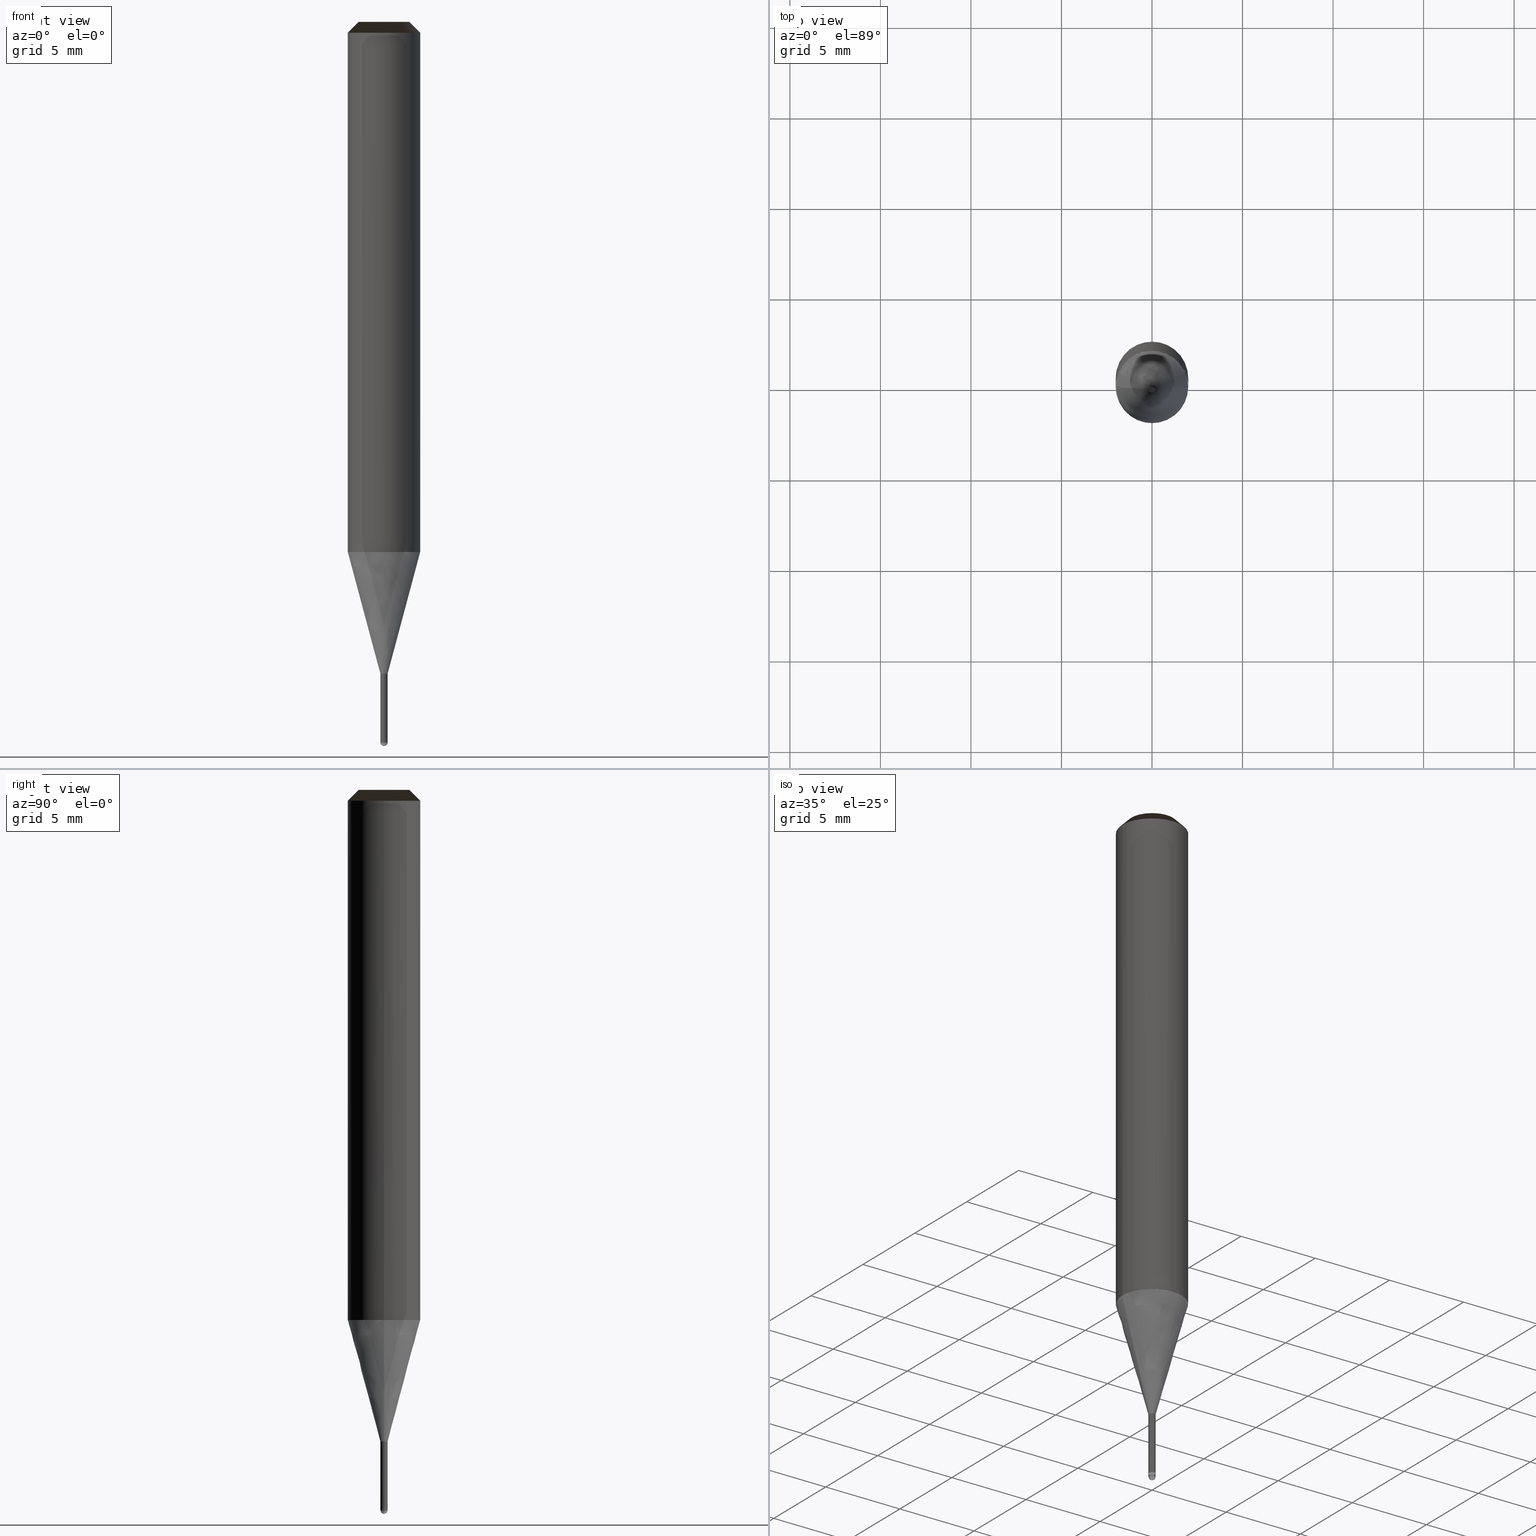
[diagram: canonical four-view strip — front | top / right | iso, engineering-drawing reading convention]
A machine part, canonical four-view strip (front | top / right | iso — engineering-drawing reading convention). The complete STEP part file that produces these views, byte-faithful:
ISO-10303-21;
HEADER;
/* Generated by ISBE GmbH (www.isbe.de) */
/* OPTION: using custom schema-name function */

FILE_DESCRIPTION(
/* description */ (''),
/* implementation_level */ '2;1');

FILE_NAME(
/*name*/ 'SHBN-2004-040-S04-STH',
/*time_stamp*/'2023-6-19T9:55:31',
/*author*/ ('ISBE GmbH'),
/*organization*/ ('ISBE GmbH'),
/*preprocessor_version*/ 'STEP IO v1.0',
/*originating_system*/ '',
/*authorisation*/ '');

FILE_SCHEMA (('AUTOMOTIVE_DESIGN'));
ENDSEC;

DATA;
#10=SHAPE_DEFINITION_REPRESENTATION(#11,#57);
#11=PRODUCT_DEFINITION_SHAPE('Document','',#13);
#12=PRODUCT_DEFINITION_CONTEXT('3D Mechanical Parts',#17,'design');
#13=PRODUCT_DEFINITION('A','First version',#14,#12);
#14=PRODUCT_DEFINITION_FORMATION_WITH_SPECIFIED_SOURCE('A','First version',#19,.MADE.);
#15=PRODUCT_RELATED_PRODUCT_CATEGORY('tool','tool',(#19));
#16=APPLICATION_PROTOCOL_DEFINITION('Draft International Standard', 'automotive_design',1999,#17);
#17=APPLICATION_CONTEXT('data for automotive mechanical design processes');
#18=PRODUCT_CONTEXT('3D Mechanical Parts',#17,'mechanical');
#19=PRODUCT('Document','Document','ISBE converted to STEP',(#18));
#20=(
LENGTH_UNIT()
NAMED_UNIT(*)
SI_UNIT(.MILLI.,.METRE.)
);
#21=(
NAMED_UNIT(*)
PLANE_ANGLE_UNIT()
SI_UNIT($,.RADIAN.)
);
#22=DIMENSIONAL_EXPONENTS(0.,0.,0.,0.,0.,0.,0.);
#23=PLANE_ANGLE_MEASURE_WITH_UNIT(PLANE_ANGLE_MEASURE(0.01745329252),#21);
#24=(
CONVERSION_BASED_UNIT('DEGREES',#23)
NAMED_UNIT(#22)
PLANE_ANGLE_UNIT()
);
#25=(
NAMED_UNIT(*)
SI_UNIT($,.STERADIAN.)
SOLID_ANGLE_UNIT()
);
#26=UNCERTAINTY_MEASURE_WITH_UNIT(LENGTH_MEASURE(0.001),#20, 'DISTANCE_ACCURACY_VALUE', 'Maximum model space distance between geometric entities at asserted connectivities');
#27=(
GEOMETRIC_REPRESENTATION_CONTEXT(3)
GLOBAL_UNCERTAINTY_ASSIGNED_CONTEXT((#26))
GLOBAL_UNIT_ASSIGNED_CONTEXT((#25,#24,#20))
REPRESENTATION_CONTEXT('ID1','3D')
);
#28=CARTESIAN_POINT('',(0.0,0.0,0.0));
#29=DIRECTION('',(1.0,0.0,0.0));
#30=DIRECTION('',(0.0,0.0,1.0));
#31=AXIS2_PLACEMENT_3D('',#28,#30,#29);
#32=CARTESIAN_POINT('',(0.0,0.0,0.0));
#33=DIRECTION('',(1.0,0.0,0.0));
#34=DIRECTION('',(0.0,0.0,1.0));
#35=AXIS2_PLACEMENT_3D('',#32,#34,#33);
#36=CARTESIAN_POINT('',(0.0,0.0,0.0));
#37=DIRECTION('',(1.0,0.0,0.0));
#38=DIRECTION('',(0.0,0.0,1.0));
#39=AXIS2_PLACEMENT_3D('',#36,#38,#37);
#40=CARTESIAN_POINT('',(0.0,0.0,0.0));
#41=DIRECTION('',(0.0,0.0,1.0));
#42=DIRECTION('',(1.0,0.0,0.0));
#43=AXIS2_PLACEMENT_3D('MCS',#40,#42,#41);
#44=CARTESIAN_POINT('',(0.0,0.0,29.28));
#45=DIRECTION('',(0.0,0.0,1.0));
#46=DIRECTION('',(1.0,0.0,0.0));
#47=AXIS2_PLACEMENT_3D('PCS',#44,#46,#45);
#48=CARTESIAN_POINT('',(0.0,0.0,-10.72));
#49=DIRECTION('',(0.0,0.0,1.0));
#50=DIRECTION('',(1.0,0.0,0.0));
#51=AXIS2_PLACEMENT_3D('CIP',#48,#50,#49);
#52=CARTESIAN_POINT('',(0.0,-0.2,-10.72));
#53=DIRECTION('',(0.0,0.0,1.0));
#54=DIRECTION('',(1.0,0.0,0.0));
#55=AXIS2_PLACEMENT_3D('CRP',#52,#54,#53);
#57=SHAPE_REPRESENTATION('Document',(#31,#35,#39,#43,#47,#51,#55),#27);
#58=DIRECTION('',(1.0,0.0,0.0));
#59=DIRECTION('',(0.0,0.0,1.0));
#60=CARTESIAN_POINT('',(-0.001999898138,-0.000020185088,-10.719967940187));
#61=CARTESIAN_POINT('',(-0.001937184154,-0.00611060247,-10.71989724324));
#62=CARTESIAN_POINT('',(-0.001858291588,-0.012678583356,-10.71958907855));
#63=CARTESIAN_POINT('',(-0.001757884212,-0.019123982412,-10.71907582259));
#64=CARTESIAN_POINT('',(-0.001623963692,-0.025523821837,-10.718358002765));
#65=CARTESIAN_POINT('',(-0.001445384409,-0.03188723763,-10.717436356683));
#66=CARTESIAN_POINT('',(-0.001211340412,-0.038212530765,-10.716311831398));
#67=CARTESIAN_POINT('',(-0.000911345944,-0.044494854652,-10.714985582436));
#68=CARTESIAN_POINT('',(-0.000535273497,-0.050728092807,-10.713458972608));
#69=CARTESIAN_POINT('',(-0.000073403757,-0.056905469984,-10.711733570607));
#70=CARTESIAN_POINT('',(0.000483521659,-0.063019788713,-10.709811149402));
#71=CARTESIAN_POINT('',(0.001144247288,-0.069063532568,-10.70769368441));
#72=CARTESIAN_POINT('',(0.001916951732,-0.075028916386,-10.705383351469));
#73=CARTESIAN_POINT('',(0.002809196959,-0.080907914367,-10.702882524603));
#74=CARTESIAN_POINT('',(0.003827879361,-0.08669227937,-10.70019377358));
#75=CARTESIAN_POINT('',(0.004979182916,-0.092373559718,-10.697319861275));
#76=CARTESIAN_POINT('',(0.006268534774,-0.097943116683,-10.694263740825));
#77=CARTESIAN_POINT('',(0.007700563585,-0.103392144361,-10.691028552601));
#78=CARTESIAN_POINT('',(0.009279060903,-0.108711692868,-10.687617620978));
#79=CARTESIAN_POINT('',(0.011006945995,-0.113892695338,-10.684034450919));
#80=CARTESIAN_POINT('',(0.0128862344,-0.118925998967,-10.680282724374));
#81=CARTESIAN_POINT('',(0.014918010555,-0.123802400146,-10.676366296494));
#82=CARTESIAN_POINT('',(0.017102404853,-0.128512683606,-10.672289191674));
#83=CARTESIAN_POINT('',(0.019438575412,-0.133047665398,-10.668055599415));
#84=CARTESIAN_POINT('',(0.021924694909,-0.137398239442,-10.66366987002));
#85=CARTESIAN_POINT('',(0.024557942723,-0.141555427309,-10.659136510121));
#86=CARTESIAN_POINT('',(0.027334502684,-0.145510430833,-10.654460178052));
#87=CARTESIAN_POINT('',(0.030249566622,-0.149254687095,-10.649645679062));
#88=CARTESIAN_POINT('',(0.033297343939,-0.152779925271,-10.644697960372));
#89=CARTESIAN_POINT('',(0.036471077322,-0.156078224784,-10.639622106098));
#90=CARTESIAN_POINT('',(0.039763064714,-0.159142074176,-10.634423332024));
#91=CARTESIAN_POINT('',(0.043164687581,-0.161964430072,-10.629106980242));
#92=CARTESIAN_POINT('',(0.04666644546,-0.164538775591,-10.623678513662));
#93=CARTESIAN_POINT('',(0.05025799672,-0.166859177548,-10.618143510401));
#94=CARTESIAN_POINT('',(0.053928205397,-0.168920341774,-10.612507658048));
#95=CARTESIAN_POINT('',(0.057665193907,-0.170717665895,-10.606776747824));
#96=CARTESIAN_POINT('',(0.061456401367,-0.172247288908,-10.600956668624));
#97=CARTESIAN_POINT('',(0.065288647189,-0.173506136924,-10.595053400976));
#98=CARTESIAN_POINT('',(0.069148199571,-0.174491964467,-10.589073010884));
#99=CARTESIAN_POINT('',(0.073020848405,-0.175203390765,-10.583021643605));
#100=CARTESIAN_POINT('',(0.076891982118,-0.175639930494,-10.576905517326));
#101=CARTESIAN_POINT('',(0.080746667854,-0.175802018512,-10.570730916782));
#102=CARTESIAN_POINT('',(0.084569734412,-0.17569102817,-10.564504186791));
#103=CARTESIAN_POINT('',(0.088345857261,-0.175309282845,-10.55823172574));
#104=CARTESIAN_POINT('',(0.092059644978,-0.174660060422,-10.551919979007));
#105=CARTESIAN_POINT('',(0.095695726368,-0.173747590532,-10.545575432337));
#106=CARTESIAN_POINT('',(0.099238837562,-0.172577044416,-10.539204605182));
#107=CARTESIAN_POINT('',(0.102673908347,-0.171154517385,-10.532814043996));
#108=CARTESIAN_POINT('',(0.105986147006,-0.16948700392,-10.526410315514));
#109=CARTESIAN_POINT('',(0.109161122935,-0.167582365539,-10.52));
#110=CARTESIAN_POINT('',(0.139198380059,-0.143609926499,-10.453333333333));
#111=CARTESIAN_POINT('',(0.164096034017,-0.114334997354,-10.386666666667));
#112=CARTESIAN_POINT('',(0.182934792063,-0.080838492396,-10.32));
#113=CARTESIAN_POINT('',(0.001999898138,0.000020185088,-10.719967940187));
#114=CARTESIAN_POINT('',(0.001937184154,0.00611060247,-10.71989724324));
#115=CARTESIAN_POINT('',(0.001858291588,0.012678583356,-10.71958907855));
#116=CARTESIAN_POINT('',(0.001757884212,0.019123982412,-10.71907582259));
#117=CARTESIAN_POINT('',(0.001623963692,0.025523821837,-10.718358002765));
#118=CARTESIAN_POINT('',(0.001445384409,0.03188723763,-10.717436356683));
#119=CARTESIAN_POINT('',(0.001211340412,0.038212530765,-10.716311831398));
#120=CARTESIAN_POINT('',(0.000911345944,0.044494854652,-10.714985582436));
#121=CARTESIAN_POINT('',(0.000535273497,0.050728092807,-10.713458972608));
#122=CARTESIAN_POINT('',(0.000073403757,0.056905469984,-10.711733570607));
#123=CARTESIAN_POINT('',(-0.000483521659,0.063019788713,-10.709811149402));
#124=CARTESIAN_POINT('',(-0.001144247288,0.069063532568,-10.70769368441));
#125=CARTESIAN_POINT('',(-0.001916951732,0.075028916386,-10.705383351469));
#126=CARTESIAN_POINT('',(-0.002809196959,0.080907914367,-10.702882524603));
#127=CARTESIAN_POINT('',(-0.003827879361,0.08669227937,-10.70019377358));
#128=CARTESIAN_POINT('',(-0.004979182916,0.092373559718,-10.697319861275));
#129=CARTESIAN_POINT('',(-0.006268534774,0.097943116683,-10.694263740825));
#130=CARTESIAN_POINT('',(-0.007700563585,0.103392144361,-10.691028552601));
#131=CARTESIAN_POINT('',(-0.009279060903,0.108711692868,-10.687617620978));
#132=CARTESIAN_POINT('',(-0.011006945995,0.113892695338,-10.684034450919));
#133=CARTESIAN_POINT('',(-0.0128862344,0.118925998967,-10.680282724374));
#134=CARTESIAN_POINT('',(-0.014918010555,0.123802400146,-10.676366296494));
#135=CARTESIAN_POINT('',(-0.017102404853,0.128512683606,-10.672289191674));
#136=CARTESIAN_POINT('',(-0.019438575412,0.133047665398,-10.668055599415));
#137=CARTESIAN_POINT('',(-0.021924694909,0.137398239442,-10.66366987002));
#138=CARTESIAN_POINT('',(-0.024557942723,0.141555427309,-10.659136510121));
#139=CARTESIAN_POINT('',(-0.027334502684,0.145510430833,-10.654460178052));
#140=CARTESIAN_POINT('',(-0.030249566622,0.149254687095,-10.649645679062));
#141=CARTESIAN_POINT('',(-0.033297343939,0.152779925271,-10.644697960372));
#142=CARTESIAN_POINT('',(-0.036471077322,0.156078224784,-10.639622106098));
#143=CARTESIAN_POINT('',(-0.039763064714,0.159142074176,-10.634423332024));
#144=CARTESIAN_POINT('',(-0.043164687581,0.161964430072,-10.629106980242));
#145=CARTESIAN_POINT('',(-0.04666644546,0.164538775591,-10.623678513662));
#146=CARTESIAN_POINT('',(-0.05025799672,0.166859177548,-10.618143510401));
#147=CARTESIAN_POINT('',(-0.053928205397,0.168920341774,-10.612507658048));
#148=CARTESIAN_POINT('',(-0.057665193907,0.170717665895,-10.606776747824));
#149=CARTESIAN_POINT('',(-0.061456401367,0.172247288908,-10.600956668624));
#150=CARTESIAN_POINT('',(-0.065288647189,0.173506136924,-10.595053400976));
#151=CARTESIAN_POINT('',(-0.069148199571,0.174491964467,-10.589073010884));
#152=CARTESIAN_POINT('',(-0.073020848405,0.175203390765,-10.583021643605));
#153=CARTESIAN_POINT('',(-0.076891982118,0.175639930494,-10.576905517326));
#154=CARTESIAN_POINT('',(-0.080746667854,0.175802018512,-10.570730916782));
#155=CARTESIAN_POINT('',(-0.084569734412,0.17569102817,-10.564504186791));
#156=CARTESIAN_POINT('',(-0.088345857261,0.175309282845,-10.55823172574));
#157=CARTESIAN_POINT('',(-0.092059644978,0.174660060422,-10.551919979007));
#158=CARTESIAN_POINT('',(-0.095695726368,0.173747590532,-10.545575432337));
#159=CARTESIAN_POINT('',(-0.099238837562,0.172577044416,-10.539204605182));
#160=CARTESIAN_POINT('',(-0.102673908347,0.171154517385,-10.532814043996));
#161=CARTESIAN_POINT('',(-0.105986147006,0.16948700392,-10.526410315514));
#162=CARTESIAN_POINT('',(-0.109161122935,0.167582365539,-10.52));
#163=CARTESIAN_POINT('',(-0.139198380059,0.143609926499,-10.453333333333));
#164=CARTESIAN_POINT('',(-0.164096034017,0.114334997354,-10.386666666667));
#165=CARTESIAN_POINT('',(-0.182934792063,0.080838492396,-10.32));
#166=CARTESIAN_POINT('',(0.0,0.0,-10.72));
#167=CARTESIAN_POINT('',(0.2,0.0,-10.72));
#168=CARTESIAN_POINT('',(0.2,0.2,-10.72));
#169=CARTESIAN_POINT('',(0.0,0.2,-10.72));
#170=CARTESIAN_POINT('',(-0.2,0.2,-10.72));
#171=CARTESIAN_POINT('',(-0.2,0.0,-10.72));
#172=CARTESIAN_POINT('',(0.2,0.0,-10.52));
#173=CARTESIAN_POINT('',(0.2,0.2,-10.52));
#174=CARTESIAN_POINT('',(0.0,0.2,-10.52));
#175=CARTESIAN_POINT('',(-0.2,0.2,-10.52));
#176=CARTESIAN_POINT('',(-0.2,0.0,-10.52));
#177=CARTESIAN_POINT('',(0.2,0.0,-10.32));
#178=CARTESIAN_POINT('',(0.2,0.2,-10.32));
#179=CARTESIAN_POINT('',(0.0,0.2,-10.32));
#180=CARTESIAN_POINT('',(-0.2,0.2,-10.32));
#181=CARTESIAN_POINT('',(-0.2,0.0,-10.32));
#182=CARTESIAN_POINT('',(0.0,0.0,-10.32));
#183=CARTESIAN_POINT('',(-0.2,-0.2,-10.72));
#184=CARTESIAN_POINT('',(0.0,-0.2,-10.72));
#185=CARTESIAN_POINT('',(0.2,-0.2,-10.72));
#186=CARTESIAN_POINT('',(-0.2,-0.2,-10.52));
#187=CARTESIAN_POINT('',(0.0,-0.2,-10.52));
#188=CARTESIAN_POINT('',(0.2,-0.2,-10.52));
#189=CARTESIAN_POINT('',(-0.2,-0.2,-10.32));
#190=CARTESIAN_POINT('',(0.0,-0.2,-10.32));
#191=CARTESIAN_POINT('',(0.2,-0.2,-10.32));
#192=CARTESIAN_POINT('',(0.2,0.0,-6.717691453624));
#193=CARTESIAN_POINT('',(0.2,0.2,-6.717691453624));
#194=CARTESIAN_POINT('',(0.0,0.2,-6.717691453624));
#195=CARTESIAN_POINT('',(-0.2,0.2,-6.717691453624));
#196=CARTESIAN_POINT('',(-0.2,0.0,-6.717691453624));
#197=CARTESIAN_POINT('',(2.0,0.0,0.0));
#198=CARTESIAN_POINT('',(2.0,2.0,0.0));
#199=CARTESIAN_POINT('',(0.0,2.0,0.0));
#200=CARTESIAN_POINT('',(-2.0,2.0,0.0));
#201=CARTESIAN_POINT('',(-2.0,0.0,0.0));
#202=CARTESIAN_POINT('',(2.0,0.0,28.68));
#203=CARTESIAN_POINT('',(2.0,2.0,28.68));
#204=CARTESIAN_POINT('',(0.0,2.0,28.68));
#205=CARTESIAN_POINT('',(-2.0,2.0,28.68));
#206=CARTESIAN_POINT('',(-2.0,0.0,28.68));
#207=CARTESIAN_POINT('',(1.4,0.0,29.28));
#208=CARTESIAN_POINT('',(1.4,1.4,29.28));
#209=CARTESIAN_POINT('',(0.0,1.4,29.28));
#210=CARTESIAN_POINT('',(-1.4,1.4,29.28));
#211=CARTESIAN_POINT('',(-1.4,0.0,29.28));
#212=CARTESIAN_POINT('',(0.0,0.0,29.28));
#213=CARTESIAN_POINT('',(-0.2,-0.2,-6.717691453624));
#214=CARTESIAN_POINT('',(0.0,-0.2,-6.717691453624));
#215=CARTESIAN_POINT('',(0.2,-0.2,-6.717691453624));
#216=CARTESIAN_POINT('',(-2.0,-2.0,0.0));
#217=CARTESIAN_POINT('',(0.0,-2.0,0.0));
#218=CARTESIAN_POINT('',(2.0,-2.0,0.0));
#219=CARTESIAN_POINT('',(-2.0,-2.0,28.68));
#220=CARTESIAN_POINT('',(0.0,-2.0,28.68));
#221=CARTESIAN_POINT('',(2.0,-2.0,28.68));
#222=CARTESIAN_POINT('',(-1.4,-1.4,29.28));
#223=CARTESIAN_POINT('',(0.0,-1.4,29.28));
#224=CARTESIAN_POINT('',(1.4,-1.4,29.28));
#225=(
BOUNDED_CURVE()
B_SPLINE_CURVE(1,(#60,#61,#62,#63,#64,#65,#66,#67,#68,#69,#70,#71,#72,#73,#74,#75,#76,#77,#78,#79,#80,#81,#82,#83,#84,#85,#86,#87,#88,#89,#90,#91,#92,#93,#94,#95,#96,#97,#98,#99,#100,#101,#102,#103,#104,#105,#106,#107,#108,#109,#110,#111,#112),.UNSPECIFIED.,.F.,.F.)
B_SPLINE_CURVE_WITH_KNOTS((2,1,1,1,1,1,1,1,1,1,1,1,1,1,1,1,1,1,1,1,1,1,1,1,1,1,1,1,1,1,1,1,1,1,1,1,1,1,1,1,1,1,1,1,1,1,1,1,1,1,1,1,2),
(0.0,0.010797937717,0.022454812458,0.033918287012,0.045337053527,0.056739741697,0.068136128556,0.079530841415,0.090926753835,0.102326126341,0.113731071449,0.125143769553,0.136566576792,0.148002078813,0.159453113446,0.170922773028,0.182414391909,0.193931522299,0.205477900529,0.217057405334,0.228674009522,0.240331726387,0.252034552176,0.263786405947,0.275591068177,0.287452119419,0.299372880312,0.311356354129,0.323405172973,0.335521548593,0.347707228654,0.359963459135,0.37229095337,0.384689868109,0.397159786789,0.409699710099,0.422308053785,0.434982653531,0.44772077666,0.460519140328,0.473373935811,0.486280858462,0.499235142853,0.512231602616,0.52526467446,0.538328465868,0.551416805924,0.56452329877,0.577641379158,0.590764369582,0.727176246388,0.863588123194,1.0),.UNSPECIFIED.)
CURVE()
GEOMETRIC_REPRESENTATION_ITEM()
RATIONAL_B_SPLINE_CURVE((1.0,1.0,1.0,1.0,1.0,1.0,1.0,1.0,1.0,1.0,1.0,1.0,1.0,1.0,1.0,1.0,1.0,1.0,1.0,1.0,1.0,1.0,1.0,1.0,1.0,1.0,1.0,1.0,1.0,1.0,1.0,1.0,1.0,1.0,1.0,1.0,1.0,1.0,1.0,1.0,1.0,1.0,1.0,1.0,1.0,1.0,1.0,1.0,1.0,1.0,1.0,1.0,1.0))
REPRESENTATION_ITEM('')
);
#226=(
BOUNDED_CURVE()
B_SPLINE_CURVE(1,(#113,#114,#115,#116,#117,#118,#119,#120,#121,#122,#123,#124,#125,#126,#127,#128,#129,#130,#131,#132,#133,#134,#135,#136,#137,#138,#139,#140,#141,#142,#143,#144,#145,#146,#147,#148,#149,#150,#151,#152,#153,#154,#155,#156,#157,#158,#159,#160,#161,#162,#163,#164,#165),.UNSPECIFIED.,.F.,.F.)
B_SPLINE_CURVE_WITH_KNOTS((2,1,1,1,1,1,1,1,1,1,1,1,1,1,1,1,1,1,1,1,1,1,1,1,1,1,1,1,1,1,1,1,1,1,1,1,1,1,1,1,1,1,1,1,1,1,1,1,1,1,1,1,2),
(0.0,0.010797937717,0.022454812458,0.033918287012,0.045337053527,0.056739741697,0.068136128556,0.079530841415,0.090926753835,0.102326126341,0.113731071449,0.125143769553,0.136566576792,0.148002078813,0.159453113446,0.170922773028,0.182414391909,0.193931522299,0.205477900529,0.217057405334,0.228674009522,0.240331726387,0.252034552176,0.263786405947,0.275591068177,0.287452119419,0.299372880312,0.311356354129,0.323405172973,0.335521548593,0.347707228654,0.359963459135,0.37229095337,0.384689868109,0.397159786789,0.409699710099,0.422308053785,0.434982653531,0.44772077666,0.460519140328,0.473373935811,0.486280858462,0.499235142853,0.512231602616,0.52526467446,0.538328465868,0.551416805924,0.56452329877,0.577641379158,0.590764369582,0.727176246388,0.863588123194,1.0),.UNSPECIFIED.)
CURVE()
GEOMETRIC_REPRESENTATION_ITEM()
RATIONAL_B_SPLINE_CURVE((1.0,1.0,1.0,1.0,1.0,1.0,1.0,1.0,1.0,1.0,1.0,1.0,1.0,1.0,1.0,1.0,1.0,1.0,1.0,1.0,1.0,1.0,1.0,1.0,1.0,1.0,1.0,1.0,1.0,1.0,1.0,1.0,1.0,1.0,1.0,1.0,1.0,1.0,1.0,1.0,1.0,1.0,1.0,1.0,1.0,1.0,1.0,1.0,1.0,1.0,1.0,1.0,1.0))
REPRESENTATION_ITEM('')
);
#227=SHAPE_REPRESENTATION_RELATIONSHIP('','',#57,#228);
#228=GEOMETRICALLY_BOUNDED_WIREFRAME_SHAPE_REPRESENTATION('Curves',(#229,#31),#27);
#229=GEOMETRIC_CURVE_SET('CurveSet',(#225,#226));
#230=(
BOUNDED_SURFACE()
B_SPLINE_SURFACE(2,2,(
(#166,#166,#166,#166,#166),
(#167,#168,#169,#170,#171),
(#172,#173,#174,#175,#176)
), .UNSPECIFIED.,.F.,.F.,.F.)
B_SPLINE_SURFACE_WITH_KNOTS((3,3),(3,2,3),(
0.0,1.0),(
0.0,0.5,1.0), .UNSPECIFIED.)
GEOMETRIC_REPRESENTATION_ITEM()
RATIONAL_B_SPLINE_SURFACE(((1.0,0.707106781187,1.0,0.707106781187,1.0),
(0.707106781187,0.5,0.707106781187,0.5,0.707106781187),
(1.0,0.707106781187,1.0,0.707106781187,1.0)
))
REPRESENTATION_ITEM('')
SURFACE()
);
#231=(
BOUNDED_CURVE()
B_SPLINE_CURVE(2,(#172,#173,#174,#175,#176),.UNSPECIFIED.,.F.,.F.)
B_SPLINE_CURVE_WITH_KNOTS((3,2,3),
(0.0,0.5,1.0),.UNSPECIFIED.)
CURVE()
GEOMETRIC_REPRESENTATION_ITEM()
RATIONAL_B_SPLINE_CURVE((1.0,0.707106781187,1.0,0.707106781187,1.0))
REPRESENTATION_ITEM('')
);
#232=(
BOUNDED_CURVE()
B_SPLINE_CURVE(2,(#176,#171,#166),.UNSPECIFIED.,.F.,.F.)
B_SPLINE_CURVE_WITH_KNOTS((3,3),
(0.0,1.0),.UNSPECIFIED.)
CURVE()
GEOMETRIC_REPRESENTATION_ITEM()
RATIONAL_B_SPLINE_CURVE((1.0,0.707106781187,1.0))
REPRESENTATION_ITEM('')
);
#233=(
BOUNDED_CURVE()
B_SPLINE_CURVE(2,(#166,#167,#172),.UNSPECIFIED.,.F.,.F.)
B_SPLINE_CURVE_WITH_KNOTS((3,3),
(0.0,1.0),.UNSPECIFIED.)
CURVE()
GEOMETRIC_REPRESENTATION_ITEM()
RATIONAL_B_SPLINE_CURVE((1.0,0.707106781187,1.0))
REPRESENTATION_ITEM('')
);
#234=VERTEX_POINT('',#166);
#235=VERTEX_POINT('',#172);
#236=VERTEX_POINT('',#176);
#237=EDGE_CURVE('',#235,#236,#231,.T.);
#238=EDGE_CURVE('',#236,#234,#232,.T.);
#239=EDGE_CURVE('',#234,#235,#233,.T.);
#240=ORIENTED_EDGE('',*,*,#237,.T.);
#241=ORIENTED_EDGE('',*,*,#238,.T.);
#242=ORIENTED_EDGE('',*,*,#239,.T.);
#243=EDGE_LOOP('',(#240,#241,#242));
#244=FACE_OUTER_BOUND('',#243,.T.);
#245=ADVANCED_FACE('',(#244),#230,.T.);
#246=(
BOUNDED_SURFACE()
B_SPLINE_SURFACE(1,2,(
(#172,#173,#174,#175,#176),
(#177,#178,#179,#180,#181)
), .UNSPECIFIED.,.F.,.F.,.F.)
B_SPLINE_SURFACE_WITH_KNOTS((2,2),(3,2,3),(
0.0,1.0),(
0.0,0.5,1.0), .UNSPECIFIED.)
GEOMETRIC_REPRESENTATION_ITEM()
RATIONAL_B_SPLINE_SURFACE(((1.0,0.707106781187,1.0,0.707106781187,1.0),
(1.0,0.707106781187,1.0,0.707106781187,1.0)
))
REPRESENTATION_ITEM('')
SURFACE()
);
#247=(
BOUNDED_CURVE()
B_SPLINE_CURVE(2,(#177,#178,#179,#180,#181),.UNSPECIFIED.,.F.,.F.)
B_SPLINE_CURVE_WITH_KNOTS((3,2,3),
(0.0,0.5,1.0),.UNSPECIFIED.)
CURVE()
GEOMETRIC_REPRESENTATION_ITEM()
RATIONAL_B_SPLINE_CURVE((1.0,0.707106781187,1.0,0.707106781187,1.0))
REPRESENTATION_ITEM('')
);
#248=(
BOUNDED_CURVE()
B_SPLINE_CURVE(1,(#181,#176),.UNSPECIFIED.,.F.,.F.)
B_SPLINE_CURVE_WITH_KNOTS((2,2),
(0.0,1.0),.UNSPECIFIED.)
CURVE()
GEOMETRIC_REPRESENTATION_ITEM()
RATIONAL_B_SPLINE_CURVE((1.0,1.0))
REPRESENTATION_ITEM('')
);
#249=(
BOUNDED_CURVE()
B_SPLINE_CURVE(2,(#176,#175,#174,#173,#172),.UNSPECIFIED.,.F.,.F.)
B_SPLINE_CURVE_WITH_KNOTS((3,2,3),
(0.0,0.5,1.0),.UNSPECIFIED.)
CURVE()
GEOMETRIC_REPRESENTATION_ITEM()
RATIONAL_B_SPLINE_CURVE((1.0,0.707106781187,1.0,0.707106781187,1.0))
REPRESENTATION_ITEM('')
);
#250=(
BOUNDED_CURVE()
B_SPLINE_CURVE(1,(#172,#177),.UNSPECIFIED.,.F.,.F.)
B_SPLINE_CURVE_WITH_KNOTS((2,2),
(0.0,1.0),.UNSPECIFIED.)
CURVE()
GEOMETRIC_REPRESENTATION_ITEM()
RATIONAL_B_SPLINE_CURVE((1.0,1.0))
REPRESENTATION_ITEM('')
);
#251=VERTEX_POINT('',#172);
#252=VERTEX_POINT('',#176);
#253=VERTEX_POINT('',#177);
#254=VERTEX_POINT('',#181);
#255=EDGE_CURVE('',#253,#254,#247,.T.);
#256=EDGE_CURVE('',#254,#252,#248,.T.);
#257=EDGE_CURVE('',#252,#251,#249,.T.);
#258=EDGE_CURVE('',#251,#253,#250,.T.);
#259=ORIENTED_EDGE('',*,*,#255,.T.);
#260=ORIENTED_EDGE('',*,*,#256,.T.);
#261=ORIENTED_EDGE('',*,*,#257,.T.);
#262=ORIENTED_EDGE('',*,*,#258,.T.);
#263=EDGE_LOOP('',(#259,#260,#261,#262));
#264=FACE_OUTER_BOUND('',#263,.T.);
#265=ADVANCED_FACE('',(#264),#246,.T.);
#266=(
BOUNDED_SURFACE()
B_SPLINE_SURFACE(1,2,(
(#177,#178,#179,#180,#181),
(#182,#182,#182,#182,#182)
), .UNSPECIFIED.,.F.,.F.,.F.)
B_SPLINE_SURFACE_WITH_KNOTS((2,2),(3,2,3),(
0.0,1.0),(
0.0,0.5,1.0), .UNSPECIFIED.)
GEOMETRIC_REPRESENTATION_ITEM()
RATIONAL_B_SPLINE_SURFACE(((1.0,0.707106781187,1.0,0.707106781187,1.0),
(1.0,0.707106781187,1.0,0.707106781187,1.0)
))
REPRESENTATION_ITEM('')
SURFACE()
);
#267=(
BOUNDED_CURVE()
B_SPLINE_CURVE(1,(#182,#177),.UNSPECIFIED.,.F.,.F.)
B_SPLINE_CURVE_WITH_KNOTS((2,2),
(0.0,1.0),.UNSPECIFIED.)
CURVE()
GEOMETRIC_REPRESENTATION_ITEM()
RATIONAL_B_SPLINE_CURVE((1.0,1.0))
REPRESENTATION_ITEM('')
);
#268=(
BOUNDED_CURVE()
B_SPLINE_CURVE(2,(#177,#178,#179,#180,#181),.UNSPECIFIED.,.F.,.F.)
B_SPLINE_CURVE_WITH_KNOTS((3,2,3),
(0.0,0.5,1.0),.UNSPECIFIED.)
CURVE()
GEOMETRIC_REPRESENTATION_ITEM()
RATIONAL_B_SPLINE_CURVE((1.0,0.707106781187,1.0,0.707106781187,1.0))
REPRESENTATION_ITEM('')
);
#269=(
BOUNDED_CURVE()
B_SPLINE_CURVE(1,(#181,#182),.UNSPECIFIED.,.F.,.F.)
B_SPLINE_CURVE_WITH_KNOTS((2,2),
(0.0,1.0),.UNSPECIFIED.)
CURVE()
GEOMETRIC_REPRESENTATION_ITEM()
RATIONAL_B_SPLINE_CURVE((1.0,1.0))
REPRESENTATION_ITEM('')
);
#270=VERTEX_POINT('',#177);
#271=VERTEX_POINT('',#181);
#272=VERTEX_POINT('',#182);
#273=EDGE_CURVE('',#272,#270,#267,.T.);
#274=EDGE_CURVE('',#270,#271,#268,.T.);
#275=EDGE_CURVE('',#271,#272,#269,.T.);
#276=ORIENTED_EDGE('',*,*,#273,.T.);
#277=ORIENTED_EDGE('',*,*,#274,.T.);
#278=ORIENTED_EDGE('',*,*,#275,.T.);
#279=EDGE_LOOP('',(#276,#277,#278));
#280=FACE_OUTER_BOUND('',#279,.T.);
#281=ADVANCED_FACE('',(#280),#266,.T.);
#282=(
BOUNDED_SURFACE()
B_SPLINE_SURFACE(2,2,(
(#166,#166,#166,#166,#166),
(#171,#183,#184,#185,#167),
(#176,#186,#187,#188,#172)
), .UNSPECIFIED.,.F.,.F.,.F.)
B_SPLINE_SURFACE_WITH_KNOTS((3,3),(3,2,3),(
0.0,1.0),(
0.0,0.5,1.0), .UNSPECIFIED.)
GEOMETRIC_REPRESENTATION_ITEM()
RATIONAL_B_SPLINE_SURFACE(((1.0,0.707106781187,1.0,0.707106781187,1.0),
(0.707106781187,0.5,0.707106781187,0.5,0.707106781187),
(1.0,0.707106781187,1.0,0.707106781187,1.0)
))
REPRESENTATION_ITEM('')
SURFACE()
);
#283=(
BOUNDED_CURVE()
B_SPLINE_CURVE(2,(#176,#171,#166),.UNSPECIFIED.,.F.,.F.)
B_SPLINE_CURVE_WITH_KNOTS((3,3),
(0.0,1.0),.UNSPECIFIED.)
CURVE()
GEOMETRIC_REPRESENTATION_ITEM()
RATIONAL_B_SPLINE_CURVE((1.0,0.707106781187,1.0))
REPRESENTATION_ITEM('')
);
#284=(
BOUNDED_CURVE()
B_SPLINE_CURVE(2,(#166,#167,#172),.UNSPECIFIED.,.F.,.F.)
B_SPLINE_CURVE_WITH_KNOTS((3,3),
(0.0,1.0),.UNSPECIFIED.)
CURVE()
GEOMETRIC_REPRESENTATION_ITEM()
RATIONAL_B_SPLINE_CURVE((1.0,0.707106781187,1.0))
REPRESENTATION_ITEM('')
);
#285=(
BOUNDED_CURVE()
B_SPLINE_CURVE(2,(#172,#188,#187,#186,#176),.UNSPECIFIED.,.F.,.F.)
B_SPLINE_CURVE_WITH_KNOTS((3,2,3),
(0.0,0.5,1.0),.UNSPECIFIED.)
CURVE()
GEOMETRIC_REPRESENTATION_ITEM()
RATIONAL_B_SPLINE_CURVE((1.0,0.707106781187,1.0,0.707106781187,1.0))
REPRESENTATION_ITEM('')
);
#286=VERTEX_POINT('',#166);
#287=VERTEX_POINT('',#172);
#288=VERTEX_POINT('',#176);
#289=EDGE_CURVE('',#288,#286,#283,.T.);
#290=EDGE_CURVE('',#286,#287,#284,.T.);
#291=EDGE_CURVE('',#287,#288,#285,.T.);
#292=ORIENTED_EDGE('',*,*,#289,.T.);
#293=ORIENTED_EDGE('',*,*,#290,.T.);
#294=ORIENTED_EDGE('',*,*,#291,.T.);
#295=EDGE_LOOP('',(#292,#293,#294));
#296=FACE_OUTER_BOUND('',#295,.T.);
#297=ADVANCED_FACE('',(#296),#282,.T.);
#298=(
BOUNDED_SURFACE()
B_SPLINE_SURFACE(1,2,(
(#176,#186,#187,#188,#172),
(#181,#189,#190,#191,#177)
), .UNSPECIFIED.,.F.,.F.,.F.)
B_SPLINE_SURFACE_WITH_KNOTS((2,2),(3,2,3),(
0.0,1.0),(
0.0,0.5,1.0), .UNSPECIFIED.)
GEOMETRIC_REPRESENTATION_ITEM()
RATIONAL_B_SPLINE_SURFACE(((1.0,0.707106781187,1.0,0.707106781187,1.0),
(1.0,0.707106781187,1.0,0.707106781187,1.0)
))
REPRESENTATION_ITEM('')
SURFACE()
);
#299=(
BOUNDED_CURVE()
B_SPLINE_CURVE(1,(#181,#176),.UNSPECIFIED.,.F.,.F.)
B_SPLINE_CURVE_WITH_KNOTS((2,2),
(0.0,1.0),.UNSPECIFIED.)
CURVE()
GEOMETRIC_REPRESENTATION_ITEM()
RATIONAL_B_SPLINE_CURVE((1.0,1.0))
REPRESENTATION_ITEM('')
);
#300=(
BOUNDED_CURVE()
B_SPLINE_CURVE(2,(#176,#186,#187,#188,#172),.UNSPECIFIED.,.F.,.F.)
B_SPLINE_CURVE_WITH_KNOTS((3,2,3),
(0.0,0.5,1.0),.UNSPECIFIED.)
CURVE()
GEOMETRIC_REPRESENTATION_ITEM()
RATIONAL_B_SPLINE_CURVE((1.0,0.707106781187,1.0,0.707106781187,1.0))
REPRESENTATION_ITEM('')
);
#301=(
BOUNDED_CURVE()
B_SPLINE_CURVE(1,(#172,#177),.UNSPECIFIED.,.F.,.F.)
B_SPLINE_CURVE_WITH_KNOTS((2,2),
(0.0,1.0),.UNSPECIFIED.)
CURVE()
GEOMETRIC_REPRESENTATION_ITEM()
RATIONAL_B_SPLINE_CURVE((1.0,1.0))
REPRESENTATION_ITEM('')
);
#302=(
BOUNDED_CURVE()
B_SPLINE_CURVE(2,(#177,#191,#190,#189,#181),.UNSPECIFIED.,.F.,.F.)
B_SPLINE_CURVE_WITH_KNOTS((3,2,3),
(0.0,0.5,1.0),.UNSPECIFIED.)
CURVE()
GEOMETRIC_REPRESENTATION_ITEM()
RATIONAL_B_SPLINE_CURVE((1.0,0.707106781187,1.0,0.707106781187,1.0))
REPRESENTATION_ITEM('')
);
#303=VERTEX_POINT('',#172);
#304=VERTEX_POINT('',#176);
#305=VERTEX_POINT('',#177);
#306=VERTEX_POINT('',#181);
#307=EDGE_CURVE('',#306,#304,#299,.T.);
#308=EDGE_CURVE('',#304,#303,#300,.T.);
#309=EDGE_CURVE('',#303,#305,#301,.T.);
#310=EDGE_CURVE('',#305,#306,#302,.T.);
#311=ORIENTED_EDGE('',*,*,#307,.T.);
#312=ORIENTED_EDGE('',*,*,#308,.T.);
#313=ORIENTED_EDGE('',*,*,#309,.T.);
#314=ORIENTED_EDGE('',*,*,#310,.T.);
#315=EDGE_LOOP('',(#311,#312,#313,#314));
#316=FACE_OUTER_BOUND('',#315,.T.);
#317=ADVANCED_FACE('',(#316),#298,.T.);
#318=(
BOUNDED_SURFACE()
B_SPLINE_SURFACE(1,2,(
(#181,#189,#190,#191,#177),
(#182,#182,#182,#182,#182)
), .UNSPECIFIED.,.F.,.F.,.F.)
B_SPLINE_SURFACE_WITH_KNOTS((2,2),(3,2,3),(
0.0,1.0),(
0.0,0.5,1.0), .UNSPECIFIED.)
GEOMETRIC_REPRESENTATION_ITEM()
RATIONAL_B_SPLINE_SURFACE(((1.0,0.707106781187,1.0,0.707106781187,1.0),
(1.0,0.707106781187,1.0,0.707106781187,1.0)
))
REPRESENTATION_ITEM('')
SURFACE()
);
#319=(
BOUNDED_CURVE()
B_SPLINE_CURVE(1,(#182,#177),.UNSPECIFIED.,.F.,.F.)
B_SPLINE_CURVE_WITH_KNOTS((2,2),
(0.0,1.0),.UNSPECIFIED.)
CURVE()
GEOMETRIC_REPRESENTATION_ITEM()
RATIONAL_B_SPLINE_CURVE((1.0,1.0))
REPRESENTATION_ITEM('')
);
#320=(
BOUNDED_CURVE()
B_SPLINE_CURVE(2,(#177,#191,#190,#189,#181),.UNSPECIFIED.,.F.,.F.)
B_SPLINE_CURVE_WITH_KNOTS((3,2,3),
(0.0,0.5,1.0),.UNSPECIFIED.)
CURVE()
GEOMETRIC_REPRESENTATION_ITEM()
RATIONAL_B_SPLINE_CURVE((1.0,0.707106781187,1.0,0.707106781187,1.0))
REPRESENTATION_ITEM('')
);
#321=(
BOUNDED_CURVE()
B_SPLINE_CURVE(1,(#181,#182),.UNSPECIFIED.,.F.,.F.)
B_SPLINE_CURVE_WITH_KNOTS((2,2),
(0.0,1.0),.UNSPECIFIED.)
CURVE()
GEOMETRIC_REPRESENTATION_ITEM()
RATIONAL_B_SPLINE_CURVE((1.0,1.0))
REPRESENTATION_ITEM('')
);
#322=VERTEX_POINT('',#177);
#323=VERTEX_POINT('',#181);
#324=VERTEX_POINT('',#182);
#325=EDGE_CURVE('',#324,#322,#319,.T.);
#326=EDGE_CURVE('',#322,#323,#320,.T.);
#327=EDGE_CURVE('',#323,#324,#321,.T.);
#328=ORIENTED_EDGE('',*,*,#325,.T.);
#329=ORIENTED_EDGE('',*,*,#326,.T.);
#330=ORIENTED_EDGE('',*,*,#327,.T.);
#331=EDGE_LOOP('',(#328,#329,#330));
#332=FACE_OUTER_BOUND('',#331,.T.);
#333=ADVANCED_FACE('',(#332),#318,.T.);
#334=CLOSED_SHELL('',(#245,#265,#281,#297,#317,#333));
#335=SHAPE_REPRESENTATION_RELATIONSHIP('','',#57,#336);
#336=ADVANCED_BREP_SHAPE_REPRESENTATION('Solid0',(#337,#31),#27);
#337=MANIFOLD_SOLID_BREP('brep',#334);
#338=(
BOUNDED_SURFACE()
B_SPLINE_SURFACE(1,2,(
(#182,#182,#182,#182,#182),
(#177,#178,#179,#180,#181)
), .UNSPECIFIED.,.F.,.F.,.F.)
B_SPLINE_SURFACE_WITH_KNOTS((2,2),(3,2,3),(
0.0,1.0),(
0.0,0.5,1.0), .UNSPECIFIED.)
GEOMETRIC_REPRESENTATION_ITEM()
RATIONAL_B_SPLINE_SURFACE(((1.0,0.707106781187,1.0,0.707106781187,1.0),
(1.0,0.707106781187,1.0,0.707106781187,1.0)
))
REPRESENTATION_ITEM('')
SURFACE()
);
#339=(
BOUNDED_CURVE()
B_SPLINE_CURVE(2,(#177,#178,#179,#180,#181),.UNSPECIFIED.,.F.,.F.)
B_SPLINE_CURVE_WITH_KNOTS((3,2,3),
(0.0,0.5,1.0),.UNSPECIFIED.)
CURVE()
GEOMETRIC_REPRESENTATION_ITEM()
RATIONAL_B_SPLINE_CURVE((1.0,0.707106781187,1.0,0.707106781187,1.0))
REPRESENTATION_ITEM('')
);
#340=(
BOUNDED_CURVE()
B_SPLINE_CURVE(1,(#181,#182),.UNSPECIFIED.,.F.,.F.)
B_SPLINE_CURVE_WITH_KNOTS((2,2),
(0.0,1.0),.UNSPECIFIED.)
CURVE()
GEOMETRIC_REPRESENTATION_ITEM()
RATIONAL_B_SPLINE_CURVE((1.0,1.0))
REPRESENTATION_ITEM('')
);
#341=(
BOUNDED_CURVE()
B_SPLINE_CURVE(1,(#182,#177),.UNSPECIFIED.,.F.,.F.)
B_SPLINE_CURVE_WITH_KNOTS((2,2),
(0.0,1.0),.UNSPECIFIED.)
CURVE()
GEOMETRIC_REPRESENTATION_ITEM()
RATIONAL_B_SPLINE_CURVE((1.0,1.0))
REPRESENTATION_ITEM('')
);
#342=VERTEX_POINT('',#177);
#343=VERTEX_POINT('',#181);
#344=VERTEX_POINT('',#182);
#345=EDGE_CURVE('',#342,#343,#339,.T.);
#346=EDGE_CURVE('',#343,#344,#340,.T.);
#347=EDGE_CURVE('',#344,#342,#341,.T.);
#348=ORIENTED_EDGE('',*,*,#345,.T.);
#349=ORIENTED_EDGE('',*,*,#346,.T.);
#350=ORIENTED_EDGE('',*,*,#347,.T.);
#351=EDGE_LOOP('',(#348,#349,#350));
#352=FACE_OUTER_BOUND('',#351,.T.);
#353=ADVANCED_FACE('',(#352),#338,.T.);
#354=(
BOUNDED_SURFACE()
B_SPLINE_SURFACE(1,2,(
(#177,#178,#179,#180,#181),
(#192,#193,#194,#195,#196)
), .UNSPECIFIED.,.F.,.F.,.F.)
B_SPLINE_SURFACE_WITH_KNOTS((2,2),(3,2,3),(
0.0,1.0),(
0.0,0.5,1.0), .UNSPECIFIED.)
GEOMETRIC_REPRESENTATION_ITEM()
RATIONAL_B_SPLINE_SURFACE(((1.0,0.707106781187,1.0,0.707106781187,1.0),
(1.0,0.707106781187,1.0,0.707106781187,1.0)
))
REPRESENTATION_ITEM('')
SURFACE()
);
#355=(
BOUNDED_CURVE()
B_SPLINE_CURVE(2,(#192,#193,#194,#195,#196),.UNSPECIFIED.,.F.,.F.)
B_SPLINE_CURVE_WITH_KNOTS((3,2,3),
(0.0,0.5,1.0),.UNSPECIFIED.)
CURVE()
GEOMETRIC_REPRESENTATION_ITEM()
RATIONAL_B_SPLINE_CURVE((1.0,0.707106781187,1.0,0.707106781187,1.0))
REPRESENTATION_ITEM('')
);
#356=(
BOUNDED_CURVE()
B_SPLINE_CURVE(1,(#196,#181),.UNSPECIFIED.,.F.,.F.)
B_SPLINE_CURVE_WITH_KNOTS((2,2),
(0.0,1.0),.UNSPECIFIED.)
CURVE()
GEOMETRIC_REPRESENTATION_ITEM()
RATIONAL_B_SPLINE_CURVE((1.0,1.0))
REPRESENTATION_ITEM('')
);
#357=(
BOUNDED_CURVE()
B_SPLINE_CURVE(2,(#181,#180,#179,#178,#177),.UNSPECIFIED.,.F.,.F.)
B_SPLINE_CURVE_WITH_KNOTS((3,2,3),
(0.0,0.5,1.0),.UNSPECIFIED.)
CURVE()
GEOMETRIC_REPRESENTATION_ITEM()
RATIONAL_B_SPLINE_CURVE((1.0,0.707106781187,1.0,0.707106781187,1.0))
REPRESENTATION_ITEM('')
);
#358=(
BOUNDED_CURVE()
B_SPLINE_CURVE(1,(#177,#192),.UNSPECIFIED.,.F.,.F.)
B_SPLINE_CURVE_WITH_KNOTS((2,2),
(0.0,1.0),.UNSPECIFIED.)
CURVE()
GEOMETRIC_REPRESENTATION_ITEM()
RATIONAL_B_SPLINE_CURVE((1.0,1.0))
REPRESENTATION_ITEM('')
);
#359=VERTEX_POINT('',#177);
#360=VERTEX_POINT('',#181);
#361=VERTEX_POINT('',#192);
#362=VERTEX_POINT('',#196);
#363=EDGE_CURVE('',#361,#362,#355,.T.);
#364=EDGE_CURVE('',#362,#360,#356,.T.);
#365=EDGE_CURVE('',#360,#359,#357,.T.);
#366=EDGE_CURVE('',#359,#361,#358,.T.);
#367=ORIENTED_EDGE('',*,*,#363,.T.);
#368=ORIENTED_EDGE('',*,*,#364,.T.);
#369=ORIENTED_EDGE('',*,*,#365,.T.);
#370=ORIENTED_EDGE('',*,*,#366,.T.);
#371=EDGE_LOOP('',(#367,#368,#369,#370));
#372=FACE_OUTER_BOUND('',#371,.T.);
#373=ADVANCED_FACE('',(#372),#354,.T.);
#374=(
BOUNDED_SURFACE()
B_SPLINE_SURFACE(1,2,(
(#192,#193,#194,#195,#196),
(#197,#198,#199,#200,#201)
), .UNSPECIFIED.,.F.,.F.,.F.)
B_SPLINE_SURFACE_WITH_KNOTS((2,2),(3,2,3),(
0.0,1.0),(
0.0,0.5,1.0), .UNSPECIFIED.)
GEOMETRIC_REPRESENTATION_ITEM()
RATIONAL_B_SPLINE_SURFACE(((1.0,0.707106781187,1.0,0.707106781187,1.0),
(1.0,0.707106781187,1.0,0.707106781187,1.0)
))
REPRESENTATION_ITEM('')
SURFACE()
);
#375=(
BOUNDED_CURVE()
B_SPLINE_CURVE(2,(#197,#198,#199,#200,#201),.UNSPECIFIED.,.F.,.F.)
B_SPLINE_CURVE_WITH_KNOTS((3,2,3),
(0.0,0.5,1.0),.UNSPECIFIED.)
CURVE()
GEOMETRIC_REPRESENTATION_ITEM()
RATIONAL_B_SPLINE_CURVE((1.0,0.707106781187,1.0,0.707106781187,1.0))
REPRESENTATION_ITEM('')
);
#376=(
BOUNDED_CURVE()
B_SPLINE_CURVE(1,(#201,#196),.UNSPECIFIED.,.F.,.F.)
B_SPLINE_CURVE_WITH_KNOTS((2,2),
(0.0,1.0),.UNSPECIFIED.)
CURVE()
GEOMETRIC_REPRESENTATION_ITEM()
RATIONAL_B_SPLINE_CURVE((1.0,1.0))
REPRESENTATION_ITEM('')
);
#377=(
BOUNDED_CURVE()
B_SPLINE_CURVE(2,(#196,#195,#194,#193,#192),.UNSPECIFIED.,.F.,.F.)
B_SPLINE_CURVE_WITH_KNOTS((3,2,3),
(0.0,0.5,1.0),.UNSPECIFIED.)
CURVE()
GEOMETRIC_REPRESENTATION_ITEM()
RATIONAL_B_SPLINE_CURVE((1.0,0.707106781187,1.0,0.707106781187,1.0))
REPRESENTATION_ITEM('')
);
#378=(
BOUNDED_CURVE()
B_SPLINE_CURVE(1,(#192,#197),.UNSPECIFIED.,.F.,.F.)
B_SPLINE_CURVE_WITH_KNOTS((2,2),
(0.0,1.0),.UNSPECIFIED.)
CURVE()
GEOMETRIC_REPRESENTATION_ITEM()
RATIONAL_B_SPLINE_CURVE((1.0,1.0))
REPRESENTATION_ITEM('')
);
#379=VERTEX_POINT('',#192);
#380=VERTEX_POINT('',#196);
#381=VERTEX_POINT('',#197);
#382=VERTEX_POINT('',#201);
#383=EDGE_CURVE('',#381,#382,#375,.T.);
#384=EDGE_CURVE('',#382,#380,#376,.T.);
#385=EDGE_CURVE('',#380,#379,#377,.T.);
#386=EDGE_CURVE('',#379,#381,#378,.T.);
#387=ORIENTED_EDGE('',*,*,#383,.T.);
#388=ORIENTED_EDGE('',*,*,#384,.T.);
#389=ORIENTED_EDGE('',*,*,#385,.T.);
#390=ORIENTED_EDGE('',*,*,#386,.T.);
#391=EDGE_LOOP('',(#387,#388,#389,#390));
#392=FACE_OUTER_BOUND('',#391,.T.);
#393=ADVANCED_FACE('',(#392),#374,.T.);
#394=(
BOUNDED_SURFACE()
B_SPLINE_SURFACE(1,2,(
(#197,#198,#199,#200,#201),
(#202,#203,#204,#205,#206)
), .UNSPECIFIED.,.F.,.F.,.F.)
B_SPLINE_SURFACE_WITH_KNOTS((2,2),(3,2,3),(
0.0,1.0),(
0.0,0.5,1.0), .UNSPECIFIED.)
GEOMETRIC_REPRESENTATION_ITEM()
RATIONAL_B_SPLINE_SURFACE(((1.0,0.707106781187,1.0,0.707106781187,1.0),
(1.0,0.707106781187,1.0,0.707106781187,1.0)
))
REPRESENTATION_ITEM('')
SURFACE()
);
#395=(
BOUNDED_CURVE()
B_SPLINE_CURVE(2,(#202,#203,#204,#205,#206),.UNSPECIFIED.,.F.,.F.)
B_SPLINE_CURVE_WITH_KNOTS((3,2,3),
(0.0,0.5,1.0),.UNSPECIFIED.)
CURVE()
GEOMETRIC_REPRESENTATION_ITEM()
RATIONAL_B_SPLINE_CURVE((1.0,0.707106781187,1.0,0.707106781187,1.0))
REPRESENTATION_ITEM('')
);
#396=(
BOUNDED_CURVE()
B_SPLINE_CURVE(1,(#206,#201),.UNSPECIFIED.,.F.,.F.)
B_SPLINE_CURVE_WITH_KNOTS((2,2),
(0.0,1.0),.UNSPECIFIED.)
CURVE()
GEOMETRIC_REPRESENTATION_ITEM()
RATIONAL_B_SPLINE_CURVE((1.0,1.0))
REPRESENTATION_ITEM('')
);
#397=(
BOUNDED_CURVE()
B_SPLINE_CURVE(2,(#201,#200,#199,#198,#197),.UNSPECIFIED.,.F.,.F.)
B_SPLINE_CURVE_WITH_KNOTS((3,2,3),
(0.0,0.5,1.0),.UNSPECIFIED.)
CURVE()
GEOMETRIC_REPRESENTATION_ITEM()
RATIONAL_B_SPLINE_CURVE((1.0,0.707106781187,1.0,0.707106781187,1.0))
REPRESENTATION_ITEM('')
);
#398=(
BOUNDED_CURVE()
B_SPLINE_CURVE(1,(#197,#202),.UNSPECIFIED.,.F.,.F.)
B_SPLINE_CURVE_WITH_KNOTS((2,2),
(0.0,1.0),.UNSPECIFIED.)
CURVE()
GEOMETRIC_REPRESENTATION_ITEM()
RATIONAL_B_SPLINE_CURVE((1.0,1.0))
REPRESENTATION_ITEM('')
);
#399=VERTEX_POINT('',#197);
#400=VERTEX_POINT('',#201);
#401=VERTEX_POINT('',#202);
#402=VERTEX_POINT('',#206);
#403=EDGE_CURVE('',#401,#402,#395,.T.);
#404=EDGE_CURVE('',#402,#400,#396,.T.);
#405=EDGE_CURVE('',#400,#399,#397,.T.);
#406=EDGE_CURVE('',#399,#401,#398,.T.);
#407=ORIENTED_EDGE('',*,*,#403,.T.);
#408=ORIENTED_EDGE('',*,*,#404,.T.);
#409=ORIENTED_EDGE('',*,*,#405,.T.);
#410=ORIENTED_EDGE('',*,*,#406,.T.);
#411=EDGE_LOOP('',(#407,#408,#409,#410));
#412=FACE_OUTER_BOUND('',#411,.T.);
#413=ADVANCED_FACE('',(#412),#394,.T.);
#414=(
BOUNDED_SURFACE()
B_SPLINE_SURFACE(1,2,(
(#202,#203,#204,#205,#206),
(#207,#208,#209,#210,#211)
), .UNSPECIFIED.,.F.,.F.,.F.)
B_SPLINE_SURFACE_WITH_KNOTS((2,2),(3,2,3),(
0.0,1.0),(
0.0,0.5,1.0), .UNSPECIFIED.)
GEOMETRIC_REPRESENTATION_ITEM()
RATIONAL_B_SPLINE_SURFACE(((1.0,0.707106781187,1.0,0.707106781187,1.0),
(1.0,0.707106781187,1.0,0.707106781187,1.0)
))
REPRESENTATION_ITEM('')
SURFACE()
);
#415=(
BOUNDED_CURVE()
B_SPLINE_CURVE(1,(#207,#202),.UNSPECIFIED.,.F.,.F.)
B_SPLINE_CURVE_WITH_KNOTS((2,2),
(0.0,1.0),.UNSPECIFIED.)
CURVE()
GEOMETRIC_REPRESENTATION_ITEM()
RATIONAL_B_SPLINE_CURVE((1.0,1.0))
REPRESENTATION_ITEM('')
);
#416=(
BOUNDED_CURVE()
B_SPLINE_CURVE(2,(#202,#203,#204,#205,#206),.UNSPECIFIED.,.F.,.F.)
B_SPLINE_CURVE_WITH_KNOTS((3,2,3),
(0.0,0.5,1.0),.UNSPECIFIED.)
CURVE()
GEOMETRIC_REPRESENTATION_ITEM()
RATIONAL_B_SPLINE_CURVE((1.0,0.707106781187,1.0,0.707106781187,1.0))
REPRESENTATION_ITEM('')
);
#417=(
BOUNDED_CURVE()
B_SPLINE_CURVE(1,(#206,#211),.UNSPECIFIED.,.F.,.F.)
B_SPLINE_CURVE_WITH_KNOTS((2,2),
(0.0,1.0),.UNSPECIFIED.)
CURVE()
GEOMETRIC_REPRESENTATION_ITEM()
RATIONAL_B_SPLINE_CURVE((1.0,1.0))
REPRESENTATION_ITEM('')
);
#418=(
BOUNDED_CURVE()
B_SPLINE_CURVE(2,(#211,#210,#209,#208,#207),.UNSPECIFIED.,.F.,.F.)
B_SPLINE_CURVE_WITH_KNOTS((3,2,3),
(0.0,0.5,1.0),.UNSPECIFIED.)
CURVE()
GEOMETRIC_REPRESENTATION_ITEM()
RATIONAL_B_SPLINE_CURVE((1.0,0.707106781187,1.0,0.707106781187,1.0))
REPRESENTATION_ITEM('')
);
#419=VERTEX_POINT('',#202);
#420=VERTEX_POINT('',#206);
#421=VERTEX_POINT('',#207);
#422=VERTEX_POINT('',#211);
#423=EDGE_CURVE('',#421,#419,#415,.T.);
#424=EDGE_CURVE('',#419,#420,#416,.T.);
#425=EDGE_CURVE('',#420,#422,#417,.T.);
#426=EDGE_CURVE('',#422,#421,#418,.T.);
#427=ORIENTED_EDGE('',*,*,#423,.T.);
#428=ORIENTED_EDGE('',*,*,#424,.T.);
#429=ORIENTED_EDGE('',*,*,#425,.T.);
#430=ORIENTED_EDGE('',*,*,#426,.T.);
#431=EDGE_LOOP('',(#427,#428,#429,#430));
#432=FACE_OUTER_BOUND('',#431,.T.);
#433=ADVANCED_FACE('',(#432),#414,.T.);
#434=(
BOUNDED_SURFACE()
B_SPLINE_SURFACE(1,2,(
(#207,#208,#209,#210,#211),
(#212,#212,#212,#212,#212)
), .UNSPECIFIED.,.F.,.F.,.F.)
B_SPLINE_SURFACE_WITH_KNOTS((2,2),(3,2,3),(
0.0,1.0),(
0.0,0.5,1.0), .UNSPECIFIED.)
GEOMETRIC_REPRESENTATION_ITEM()
RATIONAL_B_SPLINE_SURFACE(((1.0,0.707106781187,1.0,0.707106781187,1.0),
(1.0,0.707106781187,1.0,0.707106781187,1.0)
))
REPRESENTATION_ITEM('')
SURFACE()
);
#435=(
BOUNDED_CURVE()
B_SPLINE_CURVE(1,(#212,#207),.UNSPECIFIED.,.F.,.F.)
B_SPLINE_CURVE_WITH_KNOTS((2,2),
(0.0,1.0),.UNSPECIFIED.)
CURVE()
GEOMETRIC_REPRESENTATION_ITEM()
RATIONAL_B_SPLINE_CURVE((1.0,1.0))
REPRESENTATION_ITEM('')
);
#436=(
BOUNDED_CURVE()
B_SPLINE_CURVE(2,(#207,#208,#209,#210,#211),.UNSPECIFIED.,.F.,.F.)
B_SPLINE_CURVE_WITH_KNOTS((3,2,3),
(0.0,0.5,1.0),.UNSPECIFIED.)
CURVE()
GEOMETRIC_REPRESENTATION_ITEM()
RATIONAL_B_SPLINE_CURVE((1.0,0.707106781187,1.0,0.707106781187,1.0))
REPRESENTATION_ITEM('')
);
#437=(
BOUNDED_CURVE()
B_SPLINE_CURVE(1,(#211,#212),.UNSPECIFIED.,.F.,.F.)
B_SPLINE_CURVE_WITH_KNOTS((2,2),
(0.0,1.0),.UNSPECIFIED.)
CURVE()
GEOMETRIC_REPRESENTATION_ITEM()
RATIONAL_B_SPLINE_CURVE((1.0,1.0))
REPRESENTATION_ITEM('')
);
#438=VERTEX_POINT('',#207);
#439=VERTEX_POINT('',#211);
#440=VERTEX_POINT('',#212);
#441=EDGE_CURVE('',#440,#438,#435,.T.);
#442=EDGE_CURVE('',#438,#439,#436,.T.);
#443=EDGE_CURVE('',#439,#440,#437,.T.);
#444=ORIENTED_EDGE('',*,*,#441,.T.);
#445=ORIENTED_EDGE('',*,*,#442,.T.);
#446=ORIENTED_EDGE('',*,*,#443,.T.);
#447=EDGE_LOOP('',(#444,#445,#446));
#448=FACE_OUTER_BOUND('',#447,.T.);
#449=ADVANCED_FACE('',(#448),#434,.T.);
#450=(
BOUNDED_SURFACE()
B_SPLINE_SURFACE(1,2,(
(#182,#182,#182,#182,#182),
(#181,#189,#190,#191,#177)
), .UNSPECIFIED.,.F.,.F.,.F.)
B_SPLINE_SURFACE_WITH_KNOTS((2,2),(3,2,3),(
0.0,1.0),(
0.0,0.5,1.0), .UNSPECIFIED.)
GEOMETRIC_REPRESENTATION_ITEM()
RATIONAL_B_SPLINE_SURFACE(((1.0,0.707106781187,1.0,0.707106781187,1.0),
(1.0,0.707106781187,1.0,0.707106781187,1.0)
))
REPRESENTATION_ITEM('')
SURFACE()
);
#451=(
BOUNDED_CURVE()
B_SPLINE_CURVE(1,(#181,#182),.UNSPECIFIED.,.F.,.F.)
B_SPLINE_CURVE_WITH_KNOTS((2,2),
(0.0,1.0),.UNSPECIFIED.)
CURVE()
GEOMETRIC_REPRESENTATION_ITEM()
RATIONAL_B_SPLINE_CURVE((1.0,1.0))
REPRESENTATION_ITEM('')
);
#452=(
BOUNDED_CURVE()
B_SPLINE_CURVE(1,(#182,#177),.UNSPECIFIED.,.F.,.F.)
B_SPLINE_CURVE_WITH_KNOTS((2,2),
(0.0,1.0),.UNSPECIFIED.)
CURVE()
GEOMETRIC_REPRESENTATION_ITEM()
RATIONAL_B_SPLINE_CURVE((1.0,1.0))
REPRESENTATION_ITEM('')
);
#453=(
BOUNDED_CURVE()
B_SPLINE_CURVE(2,(#177,#191,#190,#189,#181),.UNSPECIFIED.,.F.,.F.)
B_SPLINE_CURVE_WITH_KNOTS((3,2,3),
(0.0,0.5,1.0),.UNSPECIFIED.)
CURVE()
GEOMETRIC_REPRESENTATION_ITEM()
RATIONAL_B_SPLINE_CURVE((1.0,0.707106781187,1.0,0.707106781187,1.0))
REPRESENTATION_ITEM('')
);
#454=VERTEX_POINT('',#177);
#455=VERTEX_POINT('',#181);
#456=VERTEX_POINT('',#182);
#457=EDGE_CURVE('',#455,#456,#451,.T.);
#458=EDGE_CURVE('',#456,#454,#452,.T.);
#459=EDGE_CURVE('',#454,#455,#453,.T.);
#460=ORIENTED_EDGE('',*,*,#457,.T.);
#461=ORIENTED_EDGE('',*,*,#458,.T.);
#462=ORIENTED_EDGE('',*,*,#459,.T.);
#463=EDGE_LOOP('',(#460,#461,#462));
#464=FACE_OUTER_BOUND('',#463,.T.);
#465=ADVANCED_FACE('',(#464),#450,.T.);
#466=(
BOUNDED_SURFACE()
B_SPLINE_SURFACE(1,2,(
(#181,#189,#190,#191,#177),
(#196,#213,#214,#215,#192)
), .UNSPECIFIED.,.F.,.F.,.F.)
B_SPLINE_SURFACE_WITH_KNOTS((2,2),(3,2,3),(
0.0,1.0),(
0.0,0.5,1.0), .UNSPECIFIED.)
GEOMETRIC_REPRESENTATION_ITEM()
RATIONAL_B_SPLINE_SURFACE(((1.0,0.707106781187,1.0,0.707106781187,1.0),
(1.0,0.707106781187,1.0,0.707106781187,1.0)
))
REPRESENTATION_ITEM('')
SURFACE()
);
#467=(
BOUNDED_CURVE()
B_SPLINE_CURVE(1,(#196,#181),.UNSPECIFIED.,.F.,.F.)
B_SPLINE_CURVE_WITH_KNOTS((2,2),
(0.0,1.0),.UNSPECIFIED.)
CURVE()
GEOMETRIC_REPRESENTATION_ITEM()
RATIONAL_B_SPLINE_CURVE((1.0,1.0))
REPRESENTATION_ITEM('')
);
#468=(
BOUNDED_CURVE()
B_SPLINE_CURVE(2,(#181,#189,#190,#191,#177),.UNSPECIFIED.,.F.,.F.)
B_SPLINE_CURVE_WITH_KNOTS((3,2,3),
(0.0,0.5,1.0),.UNSPECIFIED.)
CURVE()
GEOMETRIC_REPRESENTATION_ITEM()
RATIONAL_B_SPLINE_CURVE((1.0,0.707106781187,1.0,0.707106781187,1.0))
REPRESENTATION_ITEM('')
);
#469=(
BOUNDED_CURVE()
B_SPLINE_CURVE(1,(#177,#192),.UNSPECIFIED.,.F.,.F.)
B_SPLINE_CURVE_WITH_KNOTS((2,2),
(0.0,1.0),.UNSPECIFIED.)
CURVE()
GEOMETRIC_REPRESENTATION_ITEM()
RATIONAL_B_SPLINE_CURVE((1.0,1.0))
REPRESENTATION_ITEM('')
);
#470=(
BOUNDED_CURVE()
B_SPLINE_CURVE(2,(#192,#215,#214,#213,#196),.UNSPECIFIED.,.F.,.F.)
B_SPLINE_CURVE_WITH_KNOTS((3,2,3),
(0.0,0.5,1.0),.UNSPECIFIED.)
CURVE()
GEOMETRIC_REPRESENTATION_ITEM()
RATIONAL_B_SPLINE_CURVE((1.0,0.707106781187,1.0,0.707106781187,1.0))
REPRESENTATION_ITEM('')
);
#471=VERTEX_POINT('',#177);
#472=VERTEX_POINT('',#181);
#473=VERTEX_POINT('',#192);
#474=VERTEX_POINT('',#196);
#475=EDGE_CURVE('',#474,#472,#467,.T.);
#476=EDGE_CURVE('',#472,#471,#468,.T.);
#477=EDGE_CURVE('',#471,#473,#469,.T.);
#478=EDGE_CURVE('',#473,#474,#470,.T.);
#479=ORIENTED_EDGE('',*,*,#475,.T.);
#480=ORIENTED_EDGE('',*,*,#476,.T.);
#481=ORIENTED_EDGE('',*,*,#477,.T.);
#482=ORIENTED_EDGE('',*,*,#478,.T.);
#483=EDGE_LOOP('',(#479,#480,#481,#482));
#484=FACE_OUTER_BOUND('',#483,.T.);
#485=ADVANCED_FACE('',(#484),#466,.T.);
#486=(
BOUNDED_SURFACE()
B_SPLINE_SURFACE(1,2,(
(#196,#213,#214,#215,#192),
(#201,#216,#217,#218,#197)
), .UNSPECIFIED.,.F.,.F.,.F.)
B_SPLINE_SURFACE_WITH_KNOTS((2,2),(3,2,3),(
0.0,1.0),(
0.0,0.5,1.0), .UNSPECIFIED.)
GEOMETRIC_REPRESENTATION_ITEM()
RATIONAL_B_SPLINE_SURFACE(((1.0,0.707106781187,1.0,0.707106781187,1.0),
(1.0,0.707106781187,1.0,0.707106781187,1.0)
))
REPRESENTATION_ITEM('')
SURFACE()
);
#487=(
BOUNDED_CURVE()
B_SPLINE_CURVE(1,(#201,#196),.UNSPECIFIED.,.F.,.F.)
B_SPLINE_CURVE_WITH_KNOTS((2,2),
(0.0,1.0),.UNSPECIFIED.)
CURVE()
GEOMETRIC_REPRESENTATION_ITEM()
RATIONAL_B_SPLINE_CURVE((1.0,1.0))
REPRESENTATION_ITEM('')
);
#488=(
BOUNDED_CURVE()
B_SPLINE_CURVE(2,(#196,#213,#214,#215,#192),.UNSPECIFIED.,.F.,.F.)
B_SPLINE_CURVE_WITH_KNOTS((3,2,3),
(0.0,0.5,1.0),.UNSPECIFIED.)
CURVE()
GEOMETRIC_REPRESENTATION_ITEM()
RATIONAL_B_SPLINE_CURVE((1.0,0.707106781187,1.0,0.707106781187,1.0))
REPRESENTATION_ITEM('')
);
#489=(
BOUNDED_CURVE()
B_SPLINE_CURVE(1,(#192,#197),.UNSPECIFIED.,.F.,.F.)
B_SPLINE_CURVE_WITH_KNOTS((2,2),
(0.0,1.0),.UNSPECIFIED.)
CURVE()
GEOMETRIC_REPRESENTATION_ITEM()
RATIONAL_B_SPLINE_CURVE((1.0,1.0))
REPRESENTATION_ITEM('')
);
#490=(
BOUNDED_CURVE()
B_SPLINE_CURVE(2,(#197,#218,#217,#216,#201),.UNSPECIFIED.,.F.,.F.)
B_SPLINE_CURVE_WITH_KNOTS((3,2,3),
(0.0,0.5,1.0),.UNSPECIFIED.)
CURVE()
GEOMETRIC_REPRESENTATION_ITEM()
RATIONAL_B_SPLINE_CURVE((1.0,0.707106781187,1.0,0.707106781187,1.0))
REPRESENTATION_ITEM('')
);
#491=VERTEX_POINT('',#192);
#492=VERTEX_POINT('',#196);
#493=VERTEX_POINT('',#197);
#494=VERTEX_POINT('',#201);
#495=EDGE_CURVE('',#494,#492,#487,.T.);
#496=EDGE_CURVE('',#492,#491,#488,.T.);
#497=EDGE_CURVE('',#491,#493,#489,.T.);
#498=EDGE_CURVE('',#493,#494,#490,.T.);
#499=ORIENTED_EDGE('',*,*,#495,.T.);
#500=ORIENTED_EDGE('',*,*,#496,.T.);
#501=ORIENTED_EDGE('',*,*,#497,.T.);
#502=ORIENTED_EDGE('',*,*,#498,.T.);
#503=EDGE_LOOP('',(#499,#500,#501,#502));
#504=FACE_OUTER_BOUND('',#503,.T.);
#505=ADVANCED_FACE('',(#504),#486,.T.);
#506=(
BOUNDED_SURFACE()
B_SPLINE_SURFACE(1,2,(
(#201,#216,#217,#218,#197),
(#206,#219,#220,#221,#202)
), .UNSPECIFIED.,.F.,.F.,.F.)
B_SPLINE_SURFACE_WITH_KNOTS((2,2),(3,2,3),(
0.0,1.0),(
0.0,0.5,1.0), .UNSPECIFIED.)
GEOMETRIC_REPRESENTATION_ITEM()
RATIONAL_B_SPLINE_SURFACE(((1.0,0.707106781187,1.0,0.707106781187,1.0),
(1.0,0.707106781187,1.0,0.707106781187,1.0)
))
REPRESENTATION_ITEM('')
SURFACE()
);
#507=(
BOUNDED_CURVE()
B_SPLINE_CURVE(1,(#206,#201),.UNSPECIFIED.,.F.,.F.)
B_SPLINE_CURVE_WITH_KNOTS((2,2),
(0.0,1.0),.UNSPECIFIED.)
CURVE()
GEOMETRIC_REPRESENTATION_ITEM()
RATIONAL_B_SPLINE_CURVE((1.0,1.0))
REPRESENTATION_ITEM('')
);
#508=(
BOUNDED_CURVE()
B_SPLINE_CURVE(2,(#201,#216,#217,#218,#197),.UNSPECIFIED.,.F.,.F.)
B_SPLINE_CURVE_WITH_KNOTS((3,2,3),
(0.0,0.5,1.0),.UNSPECIFIED.)
CURVE()
GEOMETRIC_REPRESENTATION_ITEM()
RATIONAL_B_SPLINE_CURVE((1.0,0.707106781187,1.0,0.707106781187,1.0))
REPRESENTATION_ITEM('')
);
#509=(
BOUNDED_CURVE()
B_SPLINE_CURVE(1,(#197,#202),.UNSPECIFIED.,.F.,.F.)
B_SPLINE_CURVE_WITH_KNOTS((2,2),
(0.0,1.0),.UNSPECIFIED.)
CURVE()
GEOMETRIC_REPRESENTATION_ITEM()
RATIONAL_B_SPLINE_CURVE((1.0,1.0))
REPRESENTATION_ITEM('')
);
#510=(
BOUNDED_CURVE()
B_SPLINE_CURVE(2,(#202,#221,#220,#219,#206),.UNSPECIFIED.,.F.,.F.)
B_SPLINE_CURVE_WITH_KNOTS((3,2,3),
(0.0,0.5,1.0),.UNSPECIFIED.)
CURVE()
GEOMETRIC_REPRESENTATION_ITEM()
RATIONAL_B_SPLINE_CURVE((1.0,0.707106781187,1.0,0.707106781187,1.0))
REPRESENTATION_ITEM('')
);
#511=VERTEX_POINT('',#197);
#512=VERTEX_POINT('',#201);
#513=VERTEX_POINT('',#202);
#514=VERTEX_POINT('',#206);
#515=EDGE_CURVE('',#514,#512,#507,.T.);
#516=EDGE_CURVE('',#512,#511,#508,.T.);
#517=EDGE_CURVE('',#511,#513,#509,.T.);
#518=EDGE_CURVE('',#513,#514,#510,.T.);
#519=ORIENTED_EDGE('',*,*,#515,.T.);
#520=ORIENTED_EDGE('',*,*,#516,.T.);
#521=ORIENTED_EDGE('',*,*,#517,.T.);
#522=ORIENTED_EDGE('',*,*,#518,.T.);
#523=EDGE_LOOP('',(#519,#520,#521,#522));
#524=FACE_OUTER_BOUND('',#523,.T.);
#525=ADVANCED_FACE('',(#524),#506,.T.);
#526=(
BOUNDED_SURFACE()
B_SPLINE_SURFACE(1,2,(
(#206,#219,#220,#221,#202),
(#211,#222,#223,#224,#207)
), .UNSPECIFIED.,.F.,.F.,.F.)
B_SPLINE_SURFACE_WITH_KNOTS((2,2),(3,2,3),(
0.0,1.0),(
0.0,0.5,1.0), .UNSPECIFIED.)
GEOMETRIC_REPRESENTATION_ITEM()
RATIONAL_B_SPLINE_SURFACE(((1.0,0.707106781187,1.0,0.707106781187,1.0),
(1.0,0.707106781187,1.0,0.707106781187,1.0)
))
REPRESENTATION_ITEM('')
SURFACE()
);
#527=(
BOUNDED_CURVE()
B_SPLINE_CURVE(2,(#211,#222,#223,#224,#207),.UNSPECIFIED.,.F.,.F.)
B_SPLINE_CURVE_WITH_KNOTS((3,2,3),
(0.0,0.5,1.0),.UNSPECIFIED.)
CURVE()
GEOMETRIC_REPRESENTATION_ITEM()
RATIONAL_B_SPLINE_CURVE((1.0,0.707106781187,1.0,0.707106781187,1.0))
REPRESENTATION_ITEM('')
);
#528=(
BOUNDED_CURVE()
B_SPLINE_CURVE(1,(#207,#202),.UNSPECIFIED.,.F.,.F.)
B_SPLINE_CURVE_WITH_KNOTS((2,2),
(0.0,1.0),.UNSPECIFIED.)
CURVE()
GEOMETRIC_REPRESENTATION_ITEM()
RATIONAL_B_SPLINE_CURVE((1.0,1.0))
REPRESENTATION_ITEM('')
);
#529=(
BOUNDED_CURVE()
B_SPLINE_CURVE(2,(#202,#221,#220,#219,#206),.UNSPECIFIED.,.F.,.F.)
B_SPLINE_CURVE_WITH_KNOTS((3,2,3),
(0.0,0.5,1.0),.UNSPECIFIED.)
CURVE()
GEOMETRIC_REPRESENTATION_ITEM()
RATIONAL_B_SPLINE_CURVE((1.0,0.707106781187,1.0,0.707106781187,1.0))
REPRESENTATION_ITEM('')
);
#530=(
BOUNDED_CURVE()
B_SPLINE_CURVE(1,(#206,#211),.UNSPECIFIED.,.F.,.F.)
B_SPLINE_CURVE_WITH_KNOTS((2,2),
(0.0,1.0),.UNSPECIFIED.)
CURVE()
GEOMETRIC_REPRESENTATION_ITEM()
RATIONAL_B_SPLINE_CURVE((1.0,1.0))
REPRESENTATION_ITEM('')
);
#531=VERTEX_POINT('',#202);
#532=VERTEX_POINT('',#206);
#533=VERTEX_POINT('',#207);
#534=VERTEX_POINT('',#211);
#535=EDGE_CURVE('',#534,#533,#527,.T.);
#536=EDGE_CURVE('',#533,#531,#528,.T.);
#537=EDGE_CURVE('',#531,#532,#529,.T.);
#538=EDGE_CURVE('',#532,#534,#530,.T.);
#539=ORIENTED_EDGE('',*,*,#535,.T.);
#540=ORIENTED_EDGE('',*,*,#536,.T.);
#541=ORIENTED_EDGE('',*,*,#537,.T.);
#542=ORIENTED_EDGE('',*,*,#538,.T.);
#543=EDGE_LOOP('',(#539,#540,#541,#542));
#544=FACE_OUTER_BOUND('',#543,.T.);
#545=ADVANCED_FACE('',(#544),#526,.T.);
#546=(
BOUNDED_SURFACE()
B_SPLINE_SURFACE(1,2,(
(#211,#222,#223,#224,#207),
(#212,#212,#212,#212,#212)
), .UNSPECIFIED.,.F.,.F.,.F.)
B_SPLINE_SURFACE_WITH_KNOTS((2,2),(3,2,3),(
0.0,1.0),(
0.0,0.5,1.0), .UNSPECIFIED.)
GEOMETRIC_REPRESENTATION_ITEM()
RATIONAL_B_SPLINE_SURFACE(((1.0,0.707106781187,1.0,0.707106781187,1.0),
(1.0,0.707106781187,1.0,0.707106781187,1.0)
))
REPRESENTATION_ITEM('')
SURFACE()
);
#547=(
BOUNDED_CURVE()
B_SPLINE_CURVE(1,(#212,#207),.UNSPECIFIED.,.F.,.F.)
B_SPLINE_CURVE_WITH_KNOTS((2,2),
(0.0,1.0),.UNSPECIFIED.)
CURVE()
GEOMETRIC_REPRESENTATION_ITEM()
RATIONAL_B_SPLINE_CURVE((1.0,1.0))
REPRESENTATION_ITEM('')
);
#548=(
BOUNDED_CURVE()
B_SPLINE_CURVE(2,(#207,#224,#223,#222,#211),.UNSPECIFIED.,.F.,.F.)
B_SPLINE_CURVE_WITH_KNOTS((3,2,3),
(0.0,0.5,1.0),.UNSPECIFIED.)
CURVE()
GEOMETRIC_REPRESENTATION_ITEM()
RATIONAL_B_SPLINE_CURVE((1.0,0.707106781187,1.0,0.707106781187,1.0))
REPRESENTATION_ITEM('')
);
#549=(
BOUNDED_CURVE()
B_SPLINE_CURVE(1,(#211,#212),.UNSPECIFIED.,.F.,.F.)
B_SPLINE_CURVE_WITH_KNOTS((2,2),
(0.0,1.0),.UNSPECIFIED.)
CURVE()
GEOMETRIC_REPRESENTATION_ITEM()
RATIONAL_B_SPLINE_CURVE((1.0,1.0))
REPRESENTATION_ITEM('')
);
#550=VERTEX_POINT('',#207);
#551=VERTEX_POINT('',#211);
#552=VERTEX_POINT('',#212);
#553=EDGE_CURVE('',#552,#550,#547,.T.);
#554=EDGE_CURVE('',#550,#551,#548,.T.);
#555=EDGE_CURVE('',#551,#552,#549,.T.);
#556=ORIENTED_EDGE('',*,*,#553,.T.);
#557=ORIENTED_EDGE('',*,*,#554,.T.);
#558=ORIENTED_EDGE('',*,*,#555,.T.);
#559=EDGE_LOOP('',(#556,#557,#558));
#560=FACE_OUTER_BOUND('',#559,.T.);
#561=ADVANCED_FACE('',(#560),#546,.T.);
#562=CLOSED_SHELL('',(#353,#373,#393,#413,#433,#449,#465,#485,#505,#525,#545,#561));
#563=SHAPE_REPRESENTATION_RELATIONSHIP('','',#57,#564);
#564=ADVANCED_BREP_SHAPE_REPRESENTATION('Solid1',(#565,#31),#27);
#565=MANIFOLD_SOLID_BREP('brep',#562);
#566=PRESENTATION_LAYER_ASSIGNMENT('CUT','',(#337));
#567=PRESENTATION_LAYER_ASSIGNMENT('NOCUT','',(#565));
#568=PRESENTATION_LAYER_ASSIGNMENT('DETAILS','',(#225,#226));
#569=COLOUR_RGB('',0.8,0.8,0.8);
#570=COLOUR_RGB('',0.501960784314,0.501960784314,0.501960784314);
#571=COLOUR_RGB('',0.0,0.0,1.0);
#572=STYLED_ITEM('',(#573),#225);
#573=PRESENTATION_STYLE_ASSIGNMENT((#574));
#574=CURVE_STYLE('',#575,POSITIVE_LENGTH_MEASURE(0.02),#571);
#575=DRAUGHTING_PRE_DEFINED_CURVE_FONT('continuous');
#576=STYLED_ITEM('',(#577),#226);
#577=PRESENTATION_STYLE_ASSIGNMENT((#578));
#578=CURVE_STYLE('',#579,POSITIVE_LENGTH_MEASURE(0.02),#571);
#579=DRAUGHTING_PRE_DEFINED_CURVE_FONT('continuous');
#580=STYLED_ITEM('',(#581),#337);
#581=PRESENTATION_STYLE_ASSIGNMENT((#582));
#582=SURFACE_STYLE_USAGE(.BOTH.,#583);
#583=SURFACE_SIDE_STYLE('',(#584));
#584=SURFACE_STYLE_FILL_AREA(#585);
#585=FILL_AREA_STYLE('',(#586));
#586=FILL_AREA_STYLE_COLOUR('',#569);
#587=STYLED_ITEM('',(#588),#565);
#588=PRESENTATION_STYLE_ASSIGNMENT((#589));
#589=SURFACE_STYLE_USAGE(.BOTH.,#590);
#590=SURFACE_SIDE_STYLE('',(#591));
#591=SURFACE_STYLE_FILL_AREA(#592);
#592=FILL_AREA_STYLE('',(#593));
#593=FILL_AREA_STYLE_COLOUR('',#570);
#594=MECHANICAL_DESIGN_GEOMETRIC_PRESENTATION_REPRESENTATION('',(#572,#576,#580,#587),#27);
#595==CONSTRUCTIVE_GEOMETRY_REPRESENTATION('coordinate systems',(#43,#47,#51,#55), #27);
#596==CONSTRUCTIVE_GEOMETRY_REPRESENTATION_RELATIONSHIP('coordinate systems',$,#57,#595);

ENDSEC;
END-ISO-10303-21;